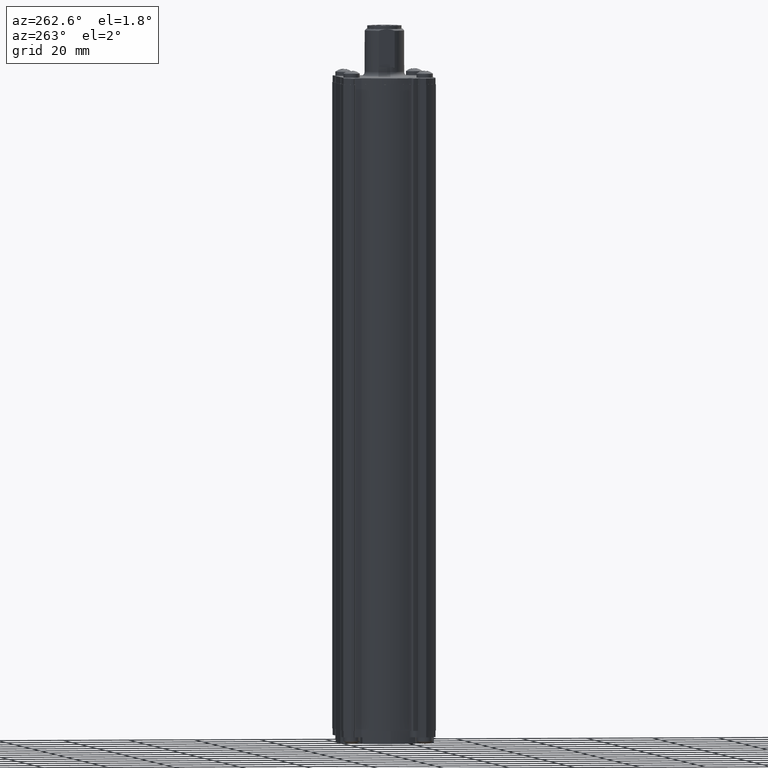
[diagram: clean part render]
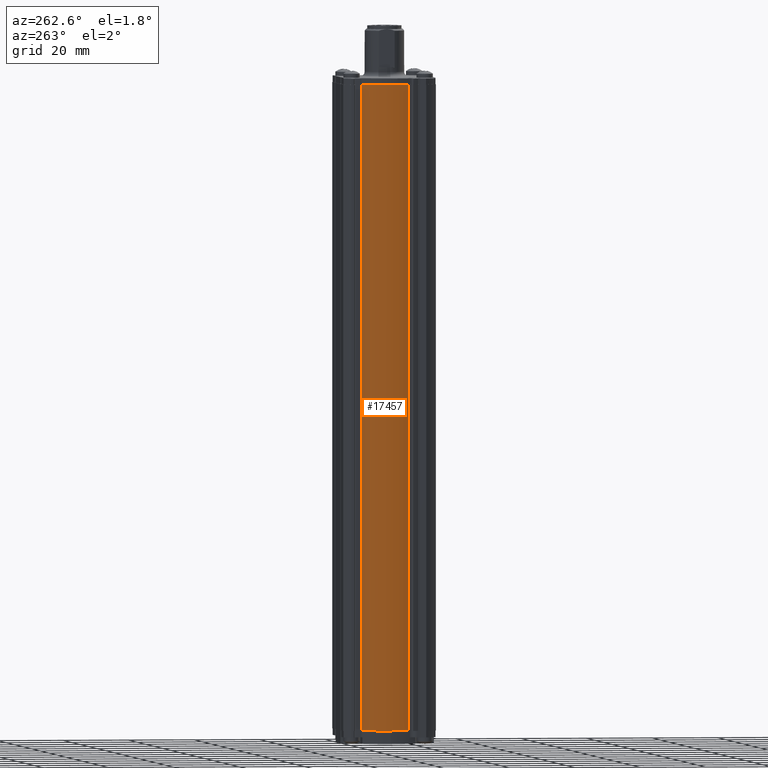
[diagram: same view with one face highlighted and labeled with its STEP entity id]
A machine part, auxiliary view. The second image highlights one B-rep face of the part: STEP entity #17457.
In plain terms, the highlighted cylindrical surface (partial cylindrical patch) has radius 15 mm, axis along (-0, 0, 1).
Its self-contained STEP definition (entity closure, byte-faithful):
#366 = CIRCLE ( 'NONE', #6925, 15.00000000000000000 ) ;
#811 = CARTESIAN_POINT ( 'NONE',  ( 0.000000000000000000, -9.999999999999999799E-13, -1.999999999998947064 ) ) ;
#1024 = FACE_OUTER_BOUND ( 'NONE', #13220, .T. ) ;
#1239 = CARTESIAN_POINT ( 'NONE',  ( -13.95125516661981813, -5.510215901021905616, -1.999999999998947064 ) ) ;
#2202 = VERTEX_POINT ( 'NONE', #1239 ) ;
#2325 = EDGE_CURVE ( 'NONE', #16870, #2202, #13276, .T. ) ;
#2378 = DIRECTION ( 'NONE',  ( 1.000000000000000000, 3.999999999999998733E-15, 0.000000000000000000 ) ) ;
#3451 = VECTOR ( 'NONE', #4855, 1000.000000000000000 ) ;
#3606 = ORIENTED_EDGE ( 'NONE', *, *, #9599, .T. ) ;
#3852 = CARTESIAN_POINT ( 'NONE',  ( -13.95125516661981813, -5.510215901021905616, -197.9999999999989484 ) ) ;
#4855 = DIRECTION ( 'NONE',  ( -0.000000000000000000, 0.000000000000000000, 1.000000000000000000 ) ) ;
#5016 = AXIS2_PLACEMENT_3D ( 'NONE', #16753, #9522, #18056 ) ;
#5554 = EDGE_CURVE ( 'NONE', #16870, #9387, #6280, .T. ) ;
#5794 = ORIENTED_EDGE ( 'NONE', *, *, #5554, .F. ) ;
#6280 = CIRCLE ( 'NONE', #9558, 15.00000000000000000 ) ;
#6925 = AXIS2_PLACEMENT_3D ( 'NONE', #811, #13439, #12312 ) ;
#8331 = CARTESIAN_POINT ( 'NONE',  ( -12.30000000000003446, 8.585452812751462659, -197.9999999999989484 ) ) ;
#9159 = ORIENTED_EDGE ( 'NONE', *, *, #15005, .F. ) ;
#9387 = VERTEX_POINT ( 'NONE', #11475 ) ;
#9522 = DIRECTION ( 'NONE',  ( -0.000000000000000000, 0.000000000000000000, 1.000000000000000000 ) ) ;
#9558 = AXIS2_PLACEMENT_3D ( 'NONE', #15094, #15191, #2378 ) ;
#9599 = EDGE_CURVE ( 'NONE', #2202, #16197, #366, .T. ) ;
#11332 = LINE ( 'NONE', #8331, #15414 ) ;
#11475 = CARTESIAN_POINT ( 'NONE',  ( -12.30000000000003446, 8.585452812751462659, -197.9999999999989484 ) ) ;
#12312 = DIRECTION ( 'NONE',  ( 1.000000000000000000, 3.999999999999998733E-15, 0.000000000000000000 ) ) ;
#13220 = EDGE_LOOP ( 'NONE', ( #3606, #9159, #5794, #14896 ) ) ;
#13276 = LINE ( 'NONE', #17771, #3451 ) ;
#13439 = DIRECTION ( 'NONE',  ( 0.000000000000000000, 0.000000000000000000, -1.000000000000000000 ) ) ;
#14199 = CYLINDRICAL_SURFACE ( 'NONE', #5016, 15.00000000000000000 ) ;
#14896 = ORIENTED_EDGE ( 'NONE', *, *, #2325, .T. ) ;
#15005 = EDGE_CURVE ( 'NONE', #9387, #16197, #11332, .T. ) ;
#15094 = CARTESIAN_POINT ( 'NONE',  ( 0.000000000000000000, -9.999999999999999799E-13, -197.9999999999989484 ) ) ;
#15191 = DIRECTION ( 'NONE',  ( 0.000000000000000000, 0.000000000000000000, -1.000000000000000000 ) ) ;
#15414 = VECTOR ( 'NONE', #16095, 1000.000000000000000 ) ;
#16095 = DIRECTION ( 'NONE',  ( -0.000000000000000000, 0.000000000000000000, 1.000000000000000000 ) ) ;
#16197 = VERTEX_POINT ( 'NONE', #16509 ) ;
#16509 = CARTESIAN_POINT ( 'NONE',  ( -12.30000000000003446, 8.585452812751462659, -1.999999999998947064 ) ) ;
#16753 = CARTESIAN_POINT ( 'NONE',  ( 0.000000000000000000, -9.999999999999999799E-13, -197.9999999999989484 ) ) ;
#16870 = VERTEX_POINT ( 'NONE', #3852 ) ;
#17457 = ADVANCED_FACE ( 'NONE', ( #1024 ), #14199, .T. ) ;
#17771 = CARTESIAN_POINT ( 'NONE',  ( -13.95125516661981813, -5.510215901021905616, -197.9999999999989484 ) ) ;
#18056 = DIRECTION ( 'NONE',  ( 1.000000000000000000, 3.999999999999998733E-15, 0.000000000000000000 ) ) ;